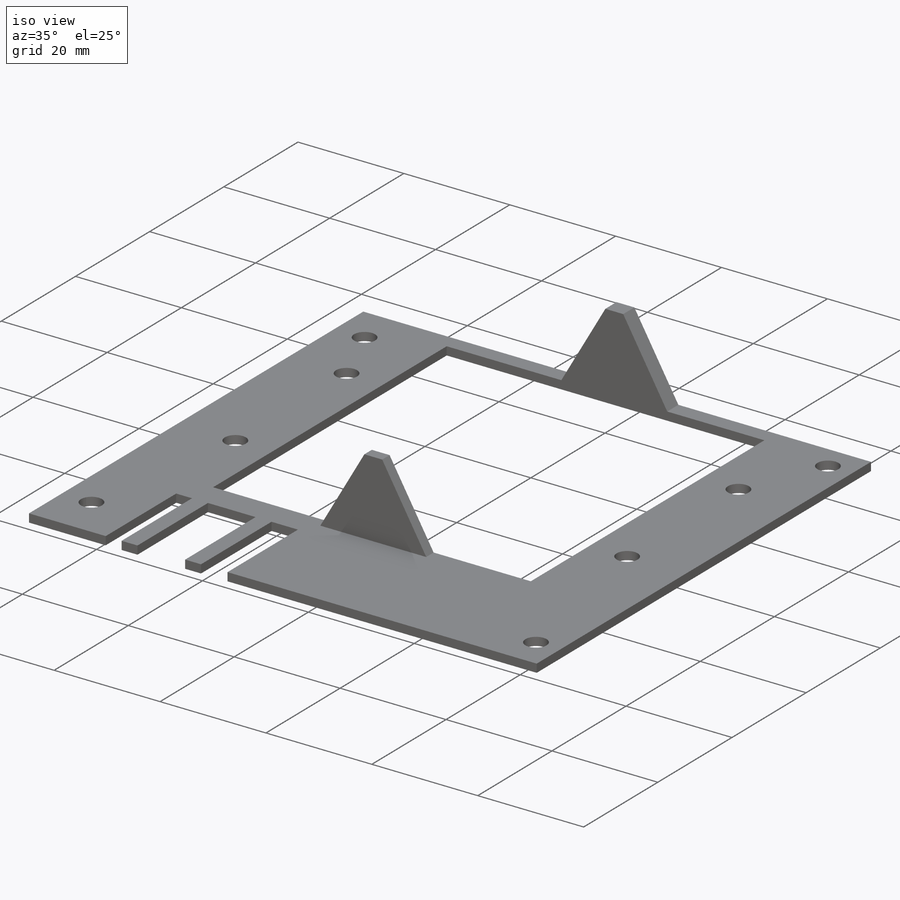
[diagram: iso view]
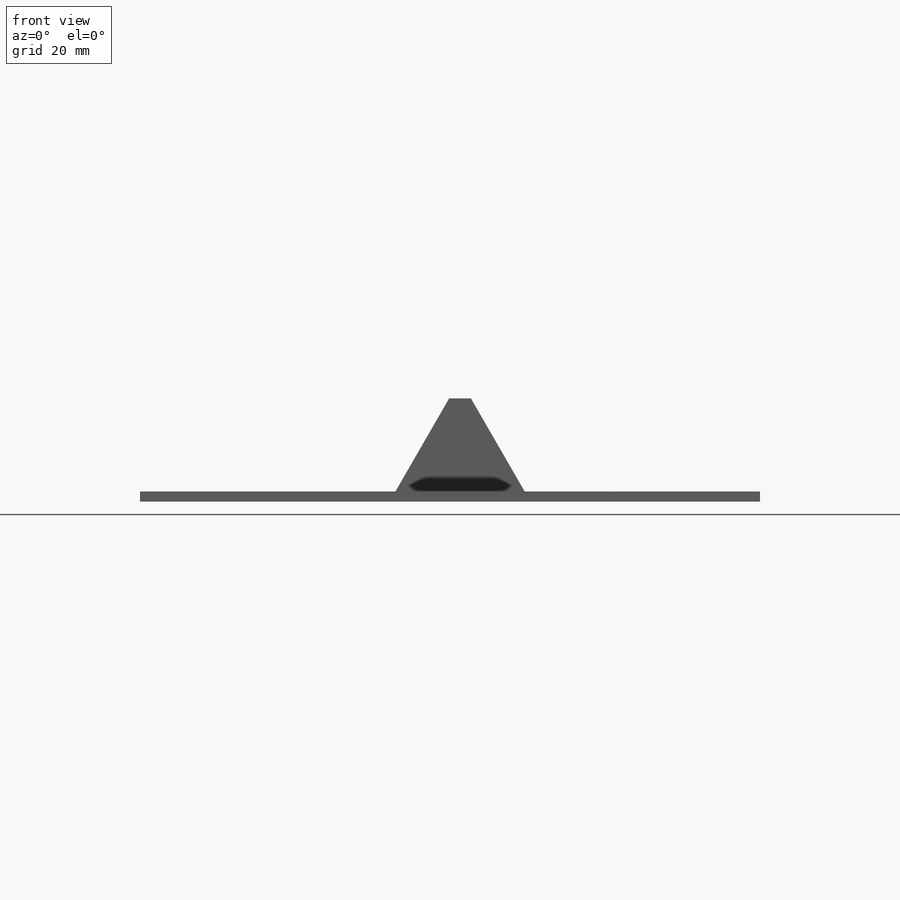
[diagram: front view]
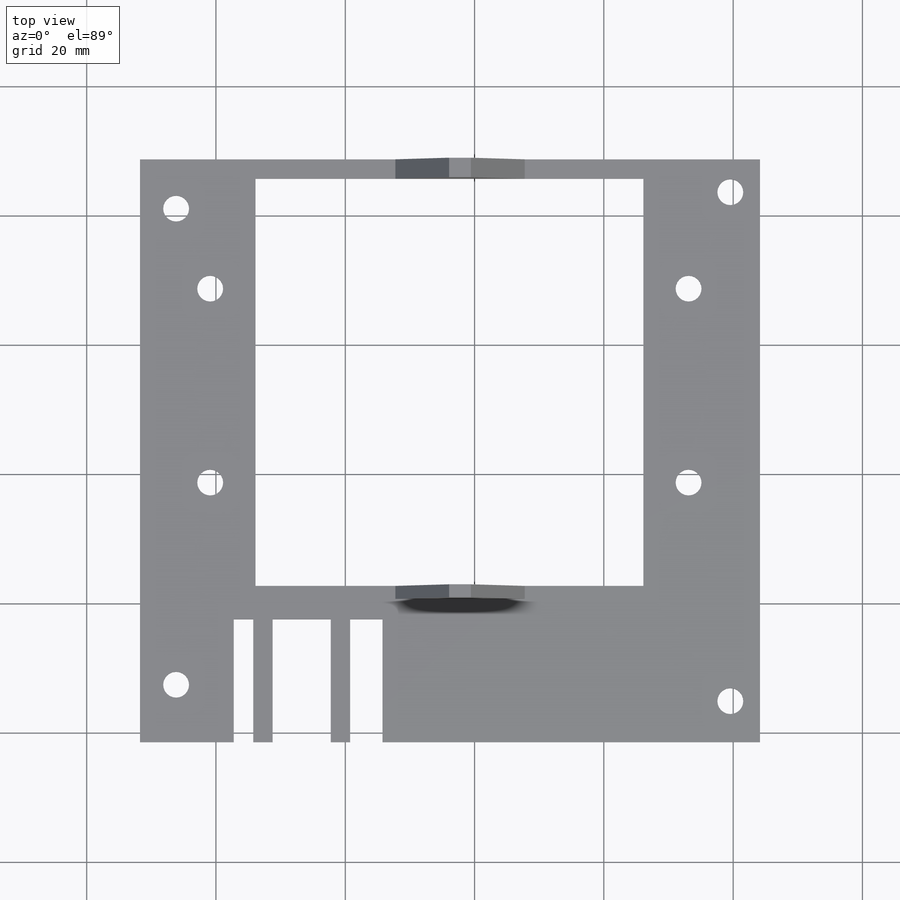
[diagram: top view]
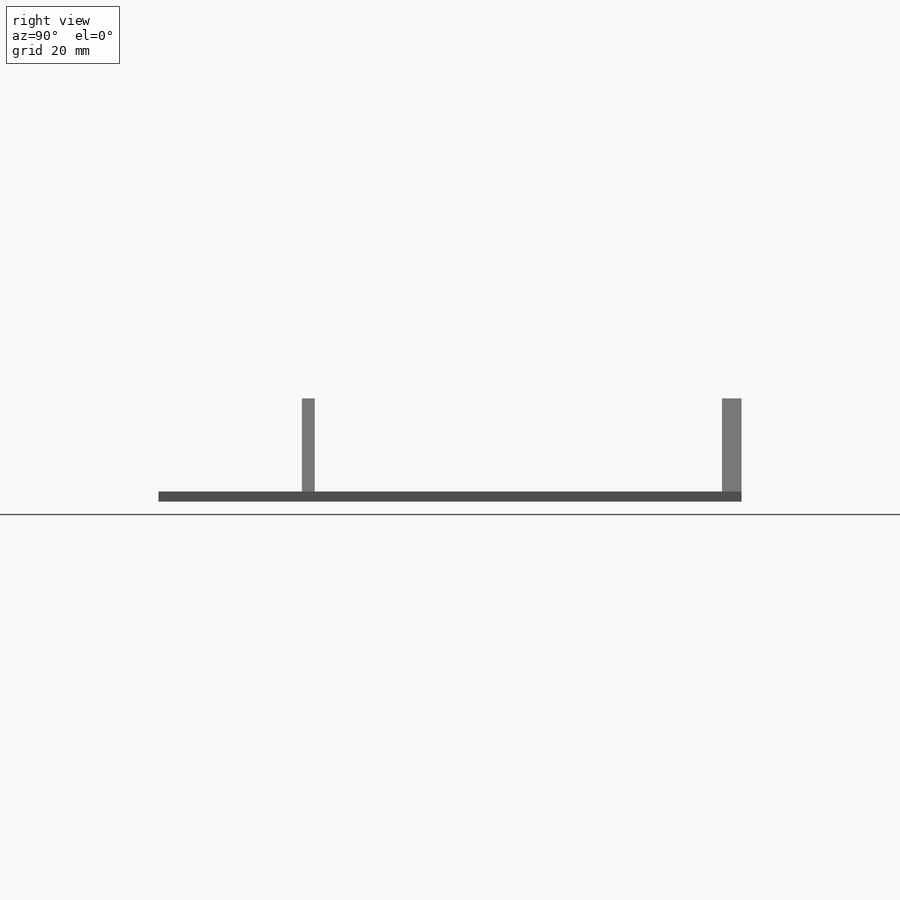
[diagram: right view]
SOLIDWORKS PART (.sldprt)
format: sldprt  version: not decoded by parser v0  size: 431,616 bytes
history: native  units: mm
features: sketch x9, cut_extrude x5, extrude x4, plane x2, material x1 (+12 scaffold rows collapsed)
feature tree (33):
  scaffold x12  (default folders/planes/origin — collapsed)
  material  "ABS"
  sketch  "Sketch1"  dims[D1=96.89mm D2=90.17mm]
  extrude  "PCB"  Depth=1.57mm
  sketch  "Sketch2"  dims[D3=4.0mm D6=4.0mm D11=4.0mm D12=4.0mm D1=5.08mm D2=6.35mm D4=90.81mm D5=8.89mm D7=90.81mm D8=5.08mm D9=85.09mm D10=82.55mm]
  cut_extrude  "M3 Mounting Holes"  Depth=1.57mm
  sketch  "Sketch3"  dims[D1=2.0mm D2=10.0mm D3=0.0mm D4=45.0mm D5=64.0mm D6=2.0mm D7=45.0mm D8=90.17mm]
  extrude  "Boss-Extrude1"  Depth=10mm
  sketch  "Sketch4"  dims[c1.D1=4.0mm c1.D2=4.0mm c1.D7=4.0mm c1.D8=4.0mm c1.D12=4.0mm c1.D3=20.0mm c1.D4=20.0mm c1.D5=74.0mm c1.D6=11.35mm c2.D7=11.54mm c2.D9=50.0mm c2.D10=50.0mm c2.D11=11.35mm c2.D12=74.0mm]
  cut_extrude  "Cut-Extrude1"  Depth=23mm
  plane  "Plane1"
  sketch  "Sketch7"  dims[c1.D1=~9.050483mm c2.D1=60.0deg c2.D2=~26.996258mm c3.D2=60.0deg c3.D3=0.0mm c3.D4=10.0mm c3.D5=~8.317538mm c4.D5=135.0deg c5.D5=~11.762775mm c6.D5=135.0deg c7.D5=20.0mm c7.D6=~8.317538mm c7.D4=~3.364924mm c8.D6=5.0mm]
  plane  "Plane2"
  sketch  "Sketch8"  dims[c1.D1=~3.364924mm c2.D1=135.0deg c3.D1=~11.762775mm c4.D1=45.0deg]
  extrude  "Boss-Extrude2"  Depth=2mm
  extrude  "Boss-Extrude3"  Depth=3mm
  sketch  "Sketch9"  dims[D1=19.0mm D2=19.0mm D3=3.0mm D4=3.0mm D5=9.0mm D6=15.0mm D7=5.0mm D8=19.0mm D9=3.0mm]
  cut_extrude  "Cut-Extrude2"  [1 undecoded]
  sketch  "Sketch10"  dims[D1=0.5mm D2=0.5mm]
  cut_extrude  "Cut-Extrude3"  Depth=10mm
  sketch  "Sketch11"  dims[D1=60.0mm D2=63.0mm D3=0.0mm D4=7.0mm D5=60.0mm]
  cut_extrude  "Cut-Extrude4"  Depth=10mm
decode coverage: 17 of 18 modeling features carry decoded parameters
note: ~ marks probable driven/reference dimensions
note: 1 parameter value undecoded
note: suppression state not decoded; provenance and decode notes live in map.json
